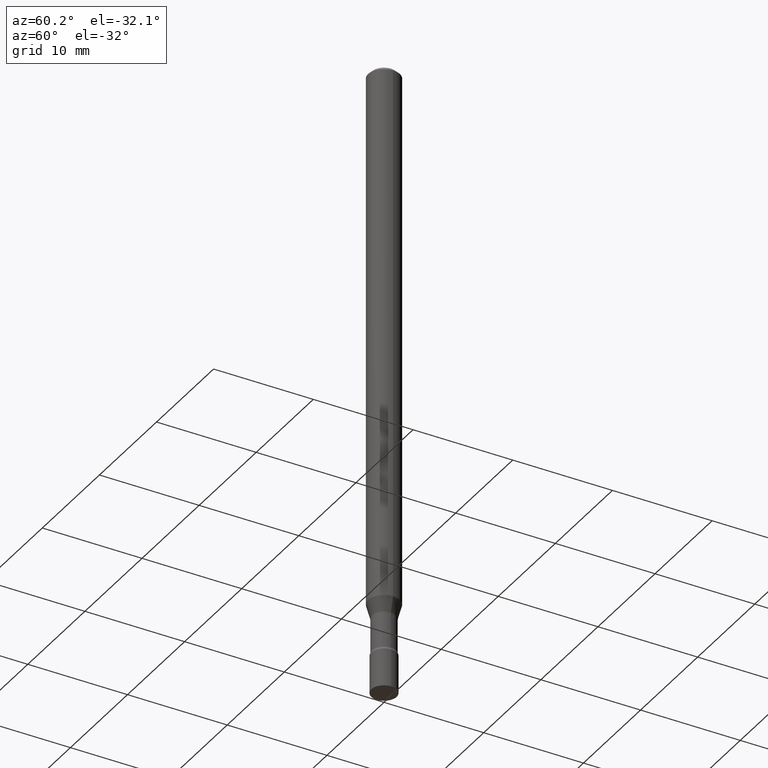
[diagram: clean part render]
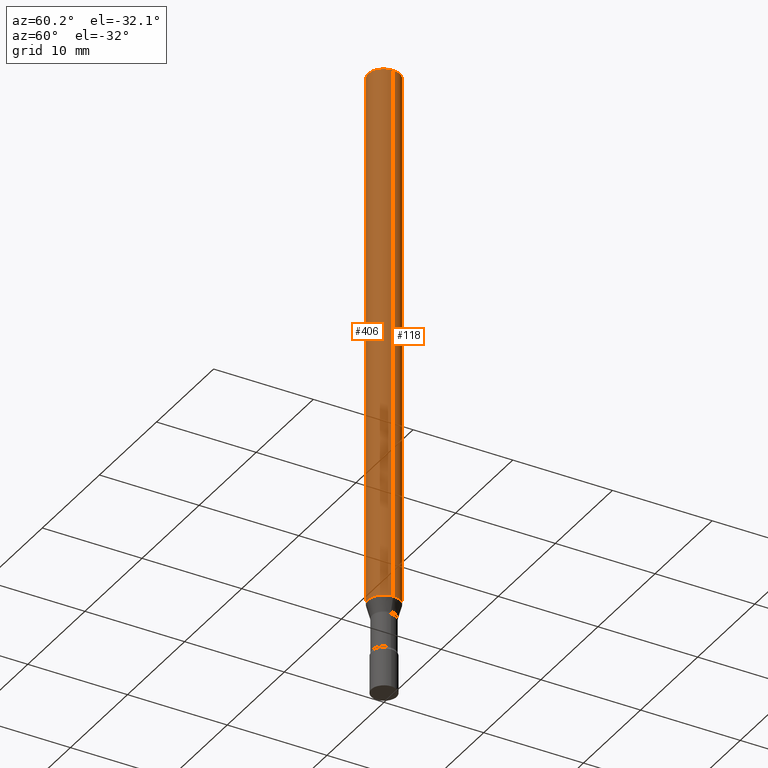
[diagram: same view with one multi-face feature highlighted, each face labeled with its STEP entity id]
A machine part, auxiliary view. The highlighted faces form ONE feature: a constant-radius fillet chain: 2 tangent blend faces with common blend radius 1.5875 mm. The faces share edges in the B-rep.
Their STEP definitions:
[1] entity #118 (Cylinder):
#8 = CARTESIAN_POINT ( 'NONE',  ( 0.06250000000000000000, -4.888073874380389458E-16, -0.01500000000000003067 ) ) ;
#24 = DIRECTION ( 'NONE',  ( -2.445468806185136877E-29, 3.491481338843145188E-15, 1.000000000000000000 ) ) ;
#54 = DIRECTION ( 'NONE',  ( 1.000000000000000000, -6.982962677686266711E-15, 4.876176775795935793E-29 ) ) ;
#62 = DIRECTION ( 'NONE',  ( -2.445468806185136597E-29, 3.491481338843145583E-15, 1.000000000000000000 ) ) ;
#77 = CARTESIAN_POINT ( 'NONE',  ( 5.238568859195680907E-29, -7.479287966326182139E-15, -2.142153212482682534 ) ) ;
#79 = AXIS2_PLACEMENT_3D ( 'NONE', #150, #117, #512 ) ;
#83 = VERTEX_POINT ( 'NONE', #8 ) ;
#99 = CARTESIAN_POINT ( 'NONE',  ( 0.06250000000000000000, -7.915723133681573808E-15, -2.142153212482682534 ) ) ;
#112 = VERTEX_POINT ( 'NONE', #99 ) ;
#117 = DIRECTION ( 'NONE',  ( -2.445468806185136597E-29, 3.491481338843145583E-15, 1.000000000000000000 ) ) ;
#118 = ADVANCED_FACE ( 'NONE', ( #225 ), #138, .T. ) ;
#122 = CARTESIAN_POINT ( 'NONE',  ( -0.06250000000000000000, -3.321740883354352190E-15, -0.01500000000000003067 ) ) ;
#126 = AXIS2_PLACEMENT_3D ( 'NONE', #77, #200, #163 ) ;
#135 = ORIENTED_EDGE ( 'NONE', *, *, #338, .T. ) ;
#138 = CYLINDRICAL_SURFACE ( 'NONE', #439, 0.06250000000000000000 ) ;
#150 = CARTESIAN_POINT ( 'NONE',  ( 3.668203209277712094E-31, -5.237222008264728876E-17, -0.01500000000000003067 ) ) ;
#163 = DIRECTION ( 'NONE',  ( 1.000000000000000000, -6.982962677686262766E-15, 0.000000000000000000 ) ) ;
#197 = LINE ( 'NONE', #310, #207 ) ;
#200 = DIRECTION ( 'NONE',  ( -2.445468806185136597E-29, 3.491481338843145583E-15, 1.000000000000000000 ) ) ;
#207 = VECTOR ( 'NONE', #275, 39.37007874015748143 ) ;
#210 = CIRCLE ( 'NONE', #126, 0.06250000000000000000 ) ;
#225 = FACE_OUTER_BOUND ( 'NONE', #510, .T. ) ;
#261 = CIRCLE ( 'NONE', #79, 0.06250000000000000000 ) ;
#270 = ORIENTED_EDGE ( 'NONE', *, *, #319, .T. ) ;
#275 = DIRECTION ( 'NONE',  ( -2.445468806185136877E-29, 3.491481338843145188E-15, 1.000000000000000000 ) ) ;
#291 = EDGE_CURVE ( 'NONE', #112, #83, #197, .T. ) ;
#299 = CARTESIAN_POINT ( 'NONE',  ( 0.000000000000000000, 0.000000000000000000, 0.000000000000000000 ) ) ;
#310 = CARTESIAN_POINT ( 'NONE',  ( 0.06250000000000000000, -4.364351673553916694E-16, 3.047610484872459871E-30 ) ) ;
#313 = VERTEX_POINT ( 'NONE', #429 ) ;
#319 = EDGE_CURVE ( 'NONE', #313, #382, #396, .T. ) ;
#322 = EDGE_CURVE ( 'NONE', #83, #382, #261, .T. ) ;
#329 = ORIENTED_EDGE ( 'NONE', *, *, #322, .F. ) ;
#338 = EDGE_CURVE ( 'NONE', #112, #313, #210, .T. ) ;
#382 = VERTEX_POINT ( 'NONE', #122 ) ;
#385 = ORIENTED_EDGE ( 'NONE', *, *, #291, .F. ) ;
#396 = LINE ( 'NONE', #477, #419 ) ;
#419 = VECTOR ( 'NONE', #24, 39.37007874015748143 ) ;
#429 = CARTESIAN_POINT ( 'NONE',  ( -0.06250000000000000000, -7.035198756476119523E-15, -2.142153212482682534 ) ) ;
#439 = AXIS2_PLACEMENT_3D ( 'NONE', #299, #62, #54 ) ;
#477 = CARTESIAN_POINT ( 'NONE',  ( -0.06250000000000000000, 4.440892098500626162E-16, -3.074334431409316114E-30 ) ) ;
#510 = EDGE_LOOP ( 'NONE', ( #135, #270, #329, #385 ) ) ;
#512 = DIRECTION ( 'NONE',  ( 1.000000000000000000, -6.982962677686266711E-15, 0.000000000000000000 ) ) ;
[2] entity #406 (Cylinder):
#8 = CARTESIAN_POINT ( 'NONE',  ( 0.06250000000000000000, -4.888073874380389458E-16, -0.01500000000000003067 ) ) ;
#24 = DIRECTION ( 'NONE',  ( -2.445468806185136877E-29, 3.491481338843145188E-15, 1.000000000000000000 ) ) ;
#59 = ORIENTED_EDGE ( 'NONE', *, *, #291, .T. ) ;
#64 = ORIENTED_EDGE ( 'NONE', *, *, #284, .T. ) ;
#80 = CARTESIAN_POINT ( 'NONE',  ( 5.238568859195680907E-29, -7.479287966326182139E-15, -2.142153212482682534 ) ) ;
#83 = VERTEX_POINT ( 'NONE', #8 ) ;
#85 = CARTESIAN_POINT ( 'NONE',  ( 0.000000000000000000, 0.000000000000000000, 0.000000000000000000 ) ) ;
#99 = CARTESIAN_POINT ( 'NONE',  ( 0.06250000000000000000, -7.915723133681573808E-15, -2.142153212482682534 ) ) ;
#112 = VERTEX_POINT ( 'NONE', #99 ) ;
#122 = CARTESIAN_POINT ( 'NONE',  ( -0.06250000000000000000, -3.321740883354352190E-15, -0.01500000000000003067 ) ) ;
#145 = AXIS2_PLACEMENT_3D ( 'NONE', #80, #402, #362 ) ;
#152 = ORIENTED_EDGE ( 'NONE', *, *, #516, .F. ) ;
#160 = DIRECTION ( 'NONE',  ( -2.445468806185136597E-29, 3.491481338843145583E-15, 1.000000000000000000 ) ) ;
#174 = AXIS2_PLACEMENT_3D ( 'NONE', #518, #160, #482 ) ;
#197 = LINE ( 'NONE', #310, #207 ) ;
#207 = VECTOR ( 'NONE', #275, 39.37007874015748143 ) ;
#275 = DIRECTION ( 'NONE',  ( -2.445468806185136877E-29, 3.491481338843145188E-15, 1.000000000000000000 ) ) ;
#284 = EDGE_CURVE ( 'NONE', #313, #112, #506, .T. ) ;
#291 = EDGE_CURVE ( 'NONE', #112, #83, #197, .T. ) ;
#310 = CARTESIAN_POINT ( 'NONE',  ( 0.06250000000000000000, -4.364351673553916694E-16, 3.047610484872459871E-30 ) ) ;
#313 = VERTEX_POINT ( 'NONE', #429 ) ;
#319 = EDGE_CURVE ( 'NONE', #313, #382, #396, .T. ) ;
#333 = DIRECTION ( 'NONE',  ( -2.445468806185136597E-29, 3.491481338843145583E-15, 1.000000000000000000 ) ) ;
#361 = AXIS2_PLACEMENT_3D ( 'NONE', #85, #333, #447 ) ;
#362 = DIRECTION ( 'NONE',  ( 1.000000000000000000, -6.982962677686262766E-15, 0.000000000000000000 ) ) ;
#382 = VERTEX_POINT ( 'NONE', #122 ) ;
#396 = LINE ( 'NONE', #477, #419 ) ;
#402 = DIRECTION ( 'NONE',  ( -2.445468806185136597E-29, 3.491481338843145583E-15, 1.000000000000000000 ) ) ;
#405 = CYLINDRICAL_SURFACE ( 'NONE', #361, 0.06250000000000000000 ) ;
#406 = ADVANCED_FACE ( 'NONE', ( #488 ), #405, .T. ) ;
#419 = VECTOR ( 'NONE', #24, 39.37007874015748143 ) ;
#428 = EDGE_LOOP ( 'NONE', ( #442, #64, #59, #152 ) ) ;
#429 = CARTESIAN_POINT ( 'NONE',  ( -0.06250000000000000000, -7.035198756476119523E-15, -2.142153212482682534 ) ) ;
#430 = CIRCLE ( 'NONE', #174, 0.06250000000000000000 ) ;
#442 = ORIENTED_EDGE ( 'NONE', *, *, #319, .F. ) ;
#447 = DIRECTION ( 'NONE',  ( 1.000000000000000000, -6.982962677686266711E-15, 4.876176775795935793E-29 ) ) ;
#477 = CARTESIAN_POINT ( 'NONE',  ( -0.06250000000000000000, 4.440892098500626162E-16, -3.074334431409316114E-30 ) ) ;
#482 = DIRECTION ( 'NONE',  ( 1.000000000000000000, -6.982962677686266711E-15, 0.000000000000000000 ) ) ;
#488 = FACE_OUTER_BOUND ( 'NONE', #428, .T. ) ;
#506 = CIRCLE ( 'NONE', #145, 0.06250000000000000000 ) ;
#516 = EDGE_CURVE ( 'NONE', #382, #83, #430, .T. ) ;
#518 = CARTESIAN_POINT ( 'NONE',  ( 3.668203209277712094E-31, -5.237222008264728876E-17, -0.01500000000000003067 ) ) ;